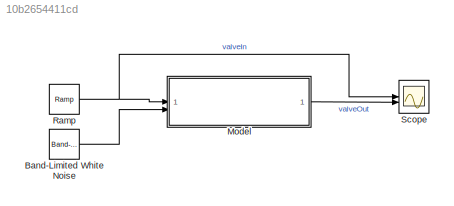
MODEL slx_10b2654411cd
KIND model
CONFIG AbsTol = auto
CONFIG EnableMultiTasking = off
CONFIG FixedStep = auto
CONFIG MaxStep = auto
CONFIG MinStep = auto
CONFIG RelTol = 1e-3
CONFIG SampleTimeConstraint = Unconstrained
CONFIG SolverName = VariableStepAuto
CONFIG StartTime = 0.0
CONFIG StopTime = 10
WORKSPACE source: mxarray member
WORKSPACE Ksvl = 0.0276
WORKSPACE Ksvr = 0.04
WORKSPACE Xmax = 0.006
WORKSPACE Xmin = -0.004
WORKSPACE dl = -0.014
WORKSPACE dr = 0.014
WORKSPACE k = 0.15
BLOCK [Reference] Band-Limited White Noise  REF=simulink/Sources/Band-Limited
White Noise
  SourceBlock = simulink/Sources/Band-Limited\nWhite Noise
  SourceType = Band-Limited White Noise.
BLOCK [ModelReference] Model
  Ksvl = Ksvl
  Ksvr = Ksvr
  ModelNameDialog = gate.slx
  ModelReferenceVersion = 3.12
  Xmax = Xmax
  Xmin = Xmin
  dl = dl
  dr = dr
  k = k
BLOCK [Reference] Ramp  REF=simulink/Sources/Ramp
  SourceBlock = simulink/Sources/Ramp
  SourceType = Ramp
BLOCK [Scope] Scope
  ActiveDisplayYMaximum = 0.0072499999999999995
  ActiveDisplayYMinimum = -0.00525
  Floating = off
  GraphicalSettings = {"Style":{"BackgroundColor":[0.12941176470588237,0.12941176470588237,0.12941176470588237],"AxesColor":[0.07058823529411765,0.07058823529411765,0.07058823529411765],"LabelsColor":[0.8509803921568627,0.8509803921568627,0.8509803921568627],"PreserveColors":false,"Visible":[false,true],"LineStyle":["-","-"],"LineWidth":[1.5,1.5],"BarWidth":[0.9,0.9],"LineColor":["auto","auto"],"LineFaceAlpha":[1,1],"L...<+2307ch>
  MultipleDisplayCache = [{"MaxYLimMag":0.0072499999999999995,"MaxYLimReal":0.0072499999999999995,"MinYLimMag":0,"MinYLimReal":-0.00525,"PlotAsMagnitudePhase":false,"ShowGrid":true,"ShowLegend":true,"Title":"%<SignalLabel>","YLabel":""}]
  NumInputPorts = 2
  ScopeFrameLocation = window
  ShowLegend = on
  WasSavedAsWebScope = on
  WindowPosition = [51.000000,190.000000,1707.000000,996.000000,]
LINE Band-Limited White Noise:1 -> Model:2
LINE Model:1 -> Scope:2
NET Ramp:1 -> Model:1, Scope:1
note: NET lines group one-source signal fan-out (src -> all destinations, sorted); 1:1 wires keep LINE
